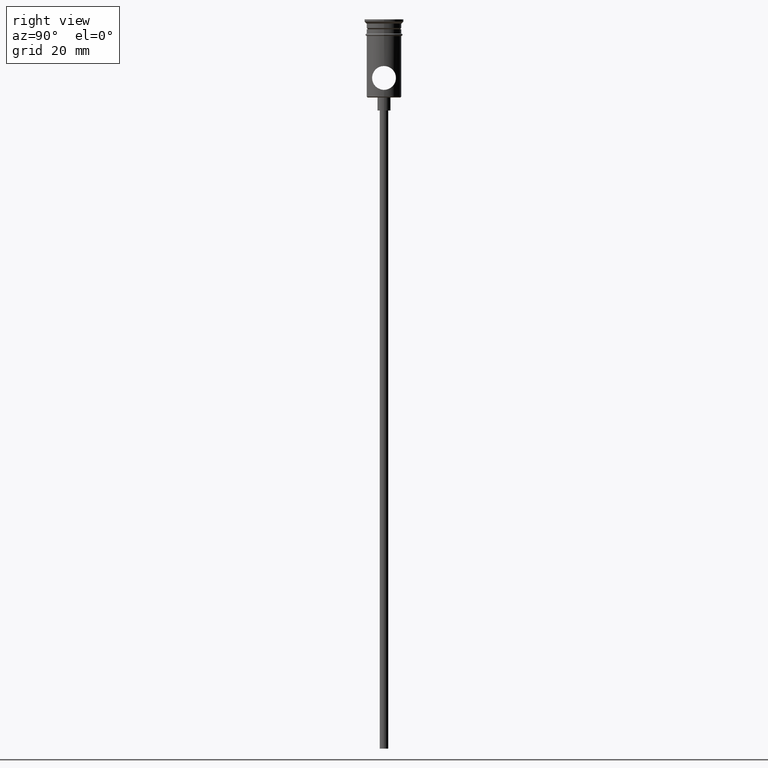
[diagram: clean part render]
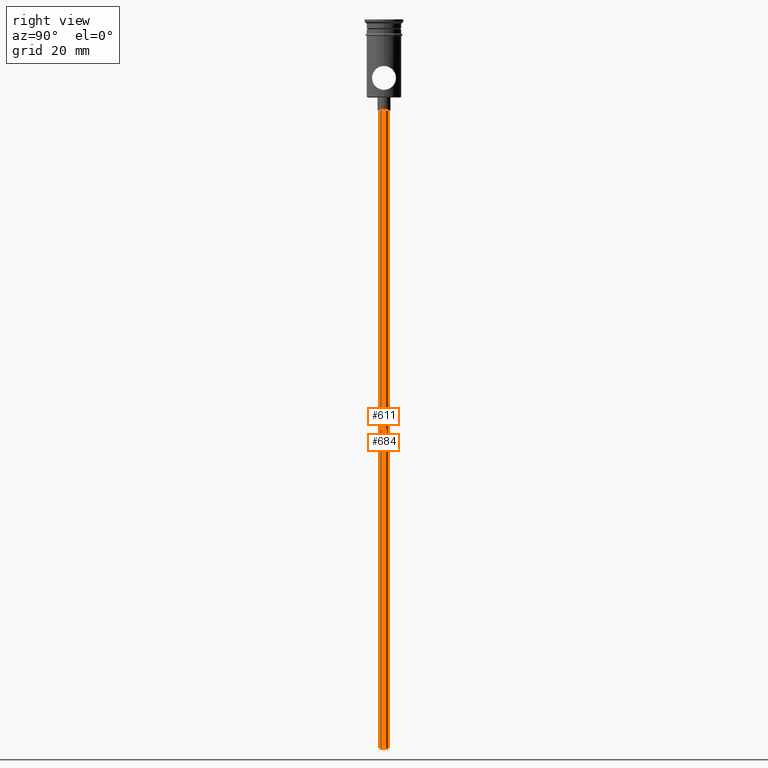
[diagram: same view with one multi-face feature highlighted, each face labeled with its STEP entity id]
A machine part, right view. The highlighted faces form ONE feature: a constant-radius fillet chain: 2 tangent blend faces with common blend radius 1 mm. The faces share edges in the B-rep.
Their STEP definitions:
[1] entity #684 (Cylinder):
#50 = DIRECTION ( 'NONE',  ( 1.000000000000000000, 0.000000000000000000, 0.000000000000000000 ) ) ;
#95 = ORIENTED_EDGE ( 'NONE', *, *, #426, .T. ) ;
#119 = VERTEX_POINT ( 'NONE', #1374 ) ;
#208 = CARTESIAN_POINT ( 'NONE',  ( 0.000000000000000000, 0.000000000000000000, -20.99999999999999645 ) ) ;
#241 = CIRCLE ( 'NONE', #595, 0.9999999999999997780 ) ;
#287 = DIRECTION ( 'NONE',  ( -0.000000000000000000, -0.000000000000000000, 1.000000000000000000 ) ) ;
#303 = DIRECTION ( 'NONE',  ( 0.000000000000000000, 0.000000000000000000, -1.000000000000000000 ) ) ;
#313 = VERTEX_POINT ( 'NONE', #763 ) ;
#318 = ORIENTED_EDGE ( 'NONE', *, *, #772, .T. ) ;
#363 = CARTESIAN_POINT ( 'NONE',  ( 0.9999999999999997780, 0.000000000000000000, -167.9999999999999716 ) ) ;
#366 = CIRCLE ( 'NONE', #798, 0.9999999999999997780 ) ;
#395 = DIRECTION ( 'NONE',  ( -1.000000000000000000, 0.000000000000000000, 0.000000000000000000 ) ) ;
#426 = EDGE_CURVE ( 'NONE', #1415, #313, #366, .T. ) ;
#474 = LINE ( 'NONE', #1037, #1390 ) ;
#536 = EDGE_LOOP ( 'NONE', ( #770, #318, #95, #759 ) ) ;
#546 = AXIS2_PLACEMENT_3D ( 'NONE', #1256, #1005, #50 ) ;
#580 = CYLINDRICAL_SURFACE ( 'NONE', #546, 0.9999999999999997780 ) ;
#595 = AXIS2_PLACEMENT_3D ( 'NONE', #1210, #303, #1195 ) ;
#599 = CARTESIAN_POINT ( 'NONE',  ( -0.9999999999999997780, 1.224646799147352961E-16, -167.9999999999999716 ) ) ;
#676 = FACE_OUTER_BOUND ( 'NONE', #536, .T. ) ;
#684 = ADVANCED_FACE ( 'NONE', ( #676 ), #580, .T. ) ;
#712 = VECTOR ( 'NONE', #287, 1000.000000000000000 ) ;
#759 = ORIENTED_EDGE ( 'NONE', *, *, #1192, .F. ) ;
#763 = CARTESIAN_POINT ( 'NONE',  ( 0.9999999999999997780, 0.000000000000000000, -20.99999999999999645 ) ) ;
#765 = VERTEX_POINT ( 'NONE', #363 ) ;
#770 = ORIENTED_EDGE ( 'NONE', *, *, #838, .F. ) ;
#772 = EDGE_CURVE ( 'NONE', #119, #1415, #797, .T. ) ;
#797 = LINE ( 'NONE', #599, #712 ) ;
#798 = AXIS2_PLACEMENT_3D ( 'NONE', #208, #980, #395 ) ;
#827 = DIRECTION ( 'NONE',  ( -0.000000000000000000, -0.000000000000000000, 1.000000000000000000 ) ) ;
#838 = EDGE_CURVE ( 'NONE', #119, #765, #241, .T. ) ;
#980 = DIRECTION ( 'NONE',  ( 0.000000000000000000, 0.000000000000000000, -1.000000000000000000 ) ) ;
#1005 = DIRECTION ( 'NONE',  ( -0.000000000000000000, -0.000000000000000000, 1.000000000000000000 ) ) ;
#1025 = CARTESIAN_POINT ( 'NONE',  ( -0.9999999999999997780, 1.224646799147352961E-16, -20.99999999999999645 ) ) ;
#1037 = CARTESIAN_POINT ( 'NONE',  ( 0.9999999999999997780, 0.000000000000000000, -167.9999999999999716 ) ) ;
#1192 = EDGE_CURVE ( 'NONE', #765, #313, #474, .T. ) ;
#1195 = DIRECTION ( 'NONE',  ( -1.000000000000000000, 0.000000000000000000, 0.000000000000000000 ) ) ;
#1210 = CARTESIAN_POINT ( 'NONE',  ( 0.000000000000000000, 0.000000000000000000, -167.9999999999999716 ) ) ;
#1256 = CARTESIAN_POINT ( 'NONE',  ( 0.000000000000000000, 0.000000000000000000, -167.9999999999999716 ) ) ;
#1374 = CARTESIAN_POINT ( 'NONE',  ( -0.9999999999999997780, 1.224646799147352961E-16, -167.9999999999999716 ) ) ;
#1390 = VECTOR ( 'NONE', #827, 1000.000000000000000 ) ;
#1415 = VERTEX_POINT ( 'NONE', #1025 ) ;
[2] entity #611 (Cylinder):
#6 = FACE_OUTER_BOUND ( 'NONE', #840, .T. ) ;
#9 = DIRECTION ( 'NONE',  ( 0.000000000000000000, 0.000000000000000000, -1.000000000000000000 ) ) ;
#119 = VERTEX_POINT ( 'NONE', #1374 ) ;
#281 = ORIENTED_EDGE ( 'NONE', *, *, #1192, .T. ) ;
#287 = DIRECTION ( 'NONE',  ( -0.000000000000000000, -0.000000000000000000, 1.000000000000000000 ) ) ;
#313 = VERTEX_POINT ( 'NONE', #763 ) ;
#363 = CARTESIAN_POINT ( 'NONE',  ( 0.9999999999999997780, 0.000000000000000000, -167.9999999999999716 ) ) ;
#388 = CIRCLE ( 'NONE', #1326, 0.9999999999999997780 ) ;
#420 = DIRECTION ( 'NONE',  ( -0.000000000000000000, -0.000000000000000000, 1.000000000000000000 ) ) ;
#422 = EDGE_CURVE ( 'NONE', #765, #119, #388, .T. ) ;
#430 = CARTESIAN_POINT ( 'NONE',  ( 0.000000000000000000, 0.000000000000000000, -167.9999999999999716 ) ) ;
#474 = LINE ( 'NONE', #1037, #1390 ) ;
#520 = ORIENTED_EDGE ( 'NONE', *, *, #772, .F. ) ;
#521 = CYLINDRICAL_SURFACE ( 'NONE', #1250, 0.9999999999999997780 ) ;
#526 = DIRECTION ( 'NONE',  ( -1.000000000000000000, 0.000000000000000000, 0.000000000000000000 ) ) ;
#599 = CARTESIAN_POINT ( 'NONE',  ( -0.9999999999999997780, 1.224646799147352961E-16, -167.9999999999999716 ) ) ;
#611 = ADVANCED_FACE ( 'NONE', ( #6 ), #521, .T. ) ;
#712 = VECTOR ( 'NONE', #287, 1000.000000000000000 ) ;
#763 = CARTESIAN_POINT ( 'NONE',  ( 0.9999999999999997780, 0.000000000000000000, -20.99999999999999645 ) ) ;
#765 = VERTEX_POINT ( 'NONE', #363 ) ;
#772 = EDGE_CURVE ( 'NONE', #119, #1415, #797, .T. ) ;
#797 = LINE ( 'NONE', #599, #712 ) ;
#827 = DIRECTION ( 'NONE',  ( -0.000000000000000000, -0.000000000000000000, 1.000000000000000000 ) ) ;
#840 = EDGE_LOOP ( 'NONE', ( #520, #902, #281, #1226 ) ) ;
#863 = DIRECTION ( 'NONE',  ( 1.000000000000000000, 0.000000000000000000, 0.000000000000000000 ) ) ;
#889 = CARTESIAN_POINT ( 'NONE',  ( 0.000000000000000000, 0.000000000000000000, -167.9999999999999716 ) ) ;
#902 = ORIENTED_EDGE ( 'NONE', *, *, #422, .F. ) ;
#954 = CARTESIAN_POINT ( 'NONE',  ( 0.000000000000000000, 0.000000000000000000, -20.99999999999999645 ) ) ;
#1025 = CARTESIAN_POINT ( 'NONE',  ( -0.9999999999999997780, 1.224646799147352961E-16, -20.99999999999999645 ) ) ;
#1037 = CARTESIAN_POINT ( 'NONE',  ( 0.9999999999999997780, 0.000000000000000000, -167.9999999999999716 ) ) ;
#1083 = DIRECTION ( 'NONE',  ( -1.000000000000000000, 0.000000000000000000, 0.000000000000000000 ) ) ;
#1104 = DIRECTION ( 'NONE',  ( 0.000000000000000000, 0.000000000000000000, -1.000000000000000000 ) ) ;
#1192 = EDGE_CURVE ( 'NONE', #765, #313, #474, .T. ) ;
#1226 = ORIENTED_EDGE ( 'NONE', *, *, #1315, .T. ) ;
#1230 = AXIS2_PLACEMENT_3D ( 'NONE', #954, #9, #526 ) ;
#1250 = AXIS2_PLACEMENT_3D ( 'NONE', #430, #420, #863 ) ;
#1254 = CIRCLE ( 'NONE', #1230, 0.9999999999999997780 ) ;
#1315 = EDGE_CURVE ( 'NONE', #313, #1415, #1254, .T. ) ;
#1326 = AXIS2_PLACEMENT_3D ( 'NONE', #889, #1104, #1083 ) ;
#1374 = CARTESIAN_POINT ( 'NONE',  ( -0.9999999999999997780, 1.224646799147352961E-16, -167.9999999999999716 ) ) ;
#1390 = VECTOR ( 'NONE', #827, 1000.000000000000000 ) ;
#1415 = VERTEX_POINT ( 'NONE', #1025 ) ;